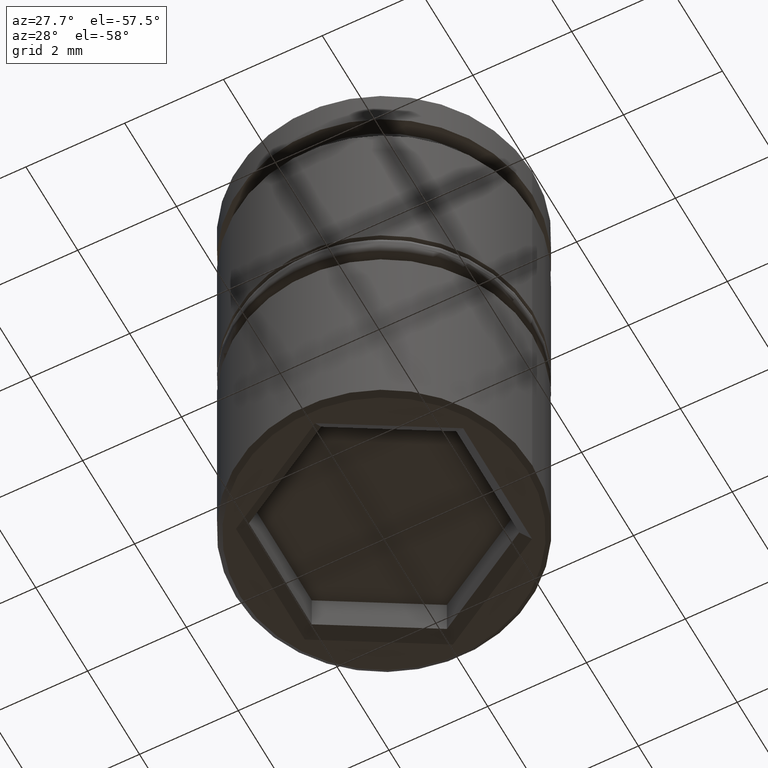
[diagram: clean part render]
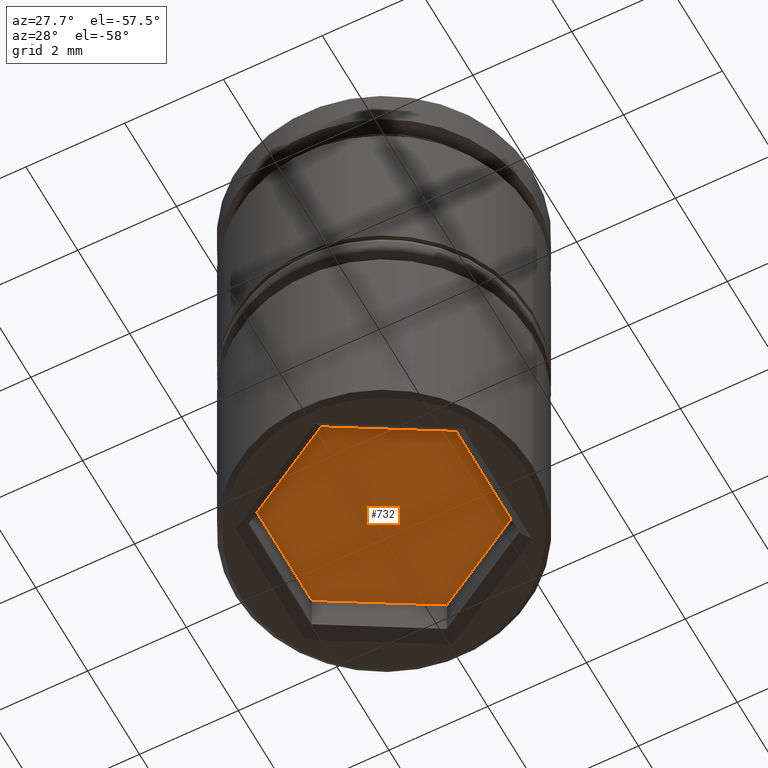
[diagram: same view with one face highlighted and labeled with its STEP entity id]
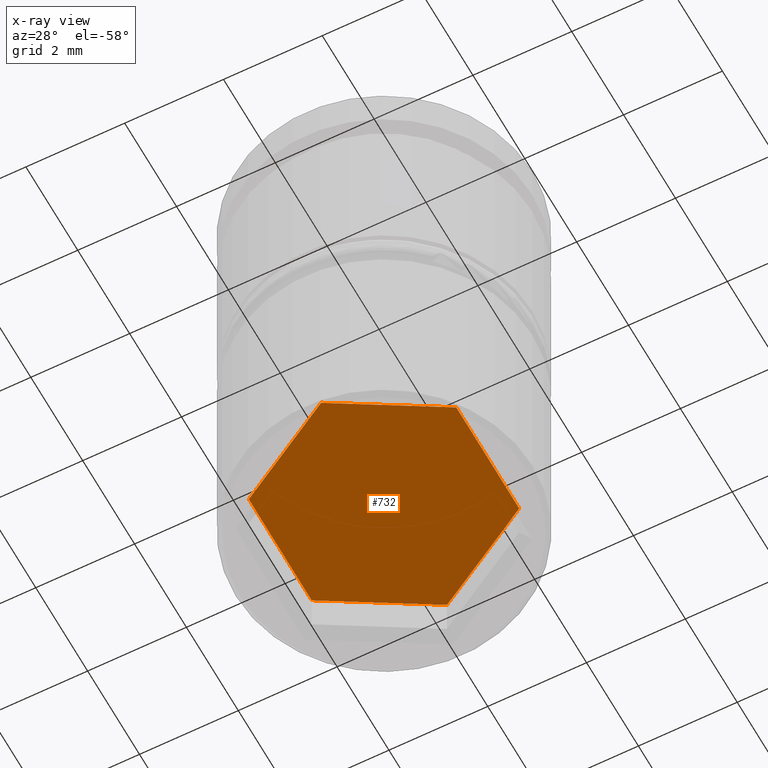
[diagram: x-ray of the same camera — body ghosted, the highlighted face saturated]
A machine part, auxiliary view. The second image highlights one B-rep face of the part: STEP entity #732.
The next image is the same camera in x-ray: the body ghosted, the highlighted face saturated — about 0% of this face is hidden behind the body in this view.
In plain terms, the highlighted planar face has unit normal (0, 0, -1).
Its self-contained STEP definition (entity closure, byte-faithful):
#17 = VERTEX_POINT ( 'NONE', #1038 ) ;
#23 = CARTESIAN_POINT ( 'NONE',  ( 0.000000000000000000, 2.424871130596428781, -9.000000000000001776 ) ) ;
#35 = LINE ( 'NONE', #23, #1125 ) ;
#43 = CARTESIAN_POINT ( 'NONE',  ( 2.100000000000000977, 1.212435565298214390, -9.000000000000001776 ) ) ;
#92 = CARTESIAN_POINT ( 'NONE',  ( 2.100000000000000977, -1.212435565298214835, -9.000000000000001776 ) ) ;
#125 = LINE ( 'NONE', #43, #947 ) ;
#157 = CARTESIAN_POINT ( 'NONE',  ( -2.100000000000000977, -1.212435565298214390, -9.000000000000001776 ) ) ;
#159 = VECTOR ( 'NONE', #790, 1000.000000000000000 ) ;
#173 = LINE ( 'NONE', #92, #705 ) ;
#194 = VECTOR ( 'NONE', #761, 1000.000000000000000 ) ;
#202 = EDGE_CURVE ( 'NONE', #939, #933, #1051, .T. ) ;
#265 = EDGE_CURVE ( 'NONE', #512, #939, #173, .T. ) ;
#280 = DIRECTION ( 'NONE',  ( -0.8660254037844388186, -0.4999999999999997780, 0.000000000000000000 ) ) ;
#316 = AXIS2_PLACEMENT_3D ( 'NONE', #471, #553, #390 ) ;
#321 = EDGE_CURVE ( 'NONE', #17, #740, #35, .T. ) ;
#368 = EDGE_CURVE ( 'NONE', #933, #505, #855, .T. ) ;
#390 = DIRECTION ( 'NONE',  ( -1.000000000000000000, 0.000000000000000000, -0.000000000000000000 ) ) ;
#391 = EDGE_CURVE ( 'NONE', #740, #512, #125, .T. ) ;
#403 = ORIENTED_EDGE ( 'NONE', *, *, #953, .T. ) ;
#471 = CARTESIAN_POINT ( 'NONE',  ( 0.000000000000000000, 0.000000000000000000, -9.000000000000001776 ) ) ;
#472 = CARTESIAN_POINT ( 'NONE',  ( -2.100000000000000977, 1.212435565298214835, -9.000000000000001776 ) ) ;
#488 = CARTESIAN_POINT ( 'NONE',  ( -2.100000000000000977, -1.212435565298214390, -9.000000000000001776 ) ) ;
#500 = ORIENTED_EDGE ( 'NONE', *, *, #368, .T. ) ;
#505 = VERTEX_POINT ( 'NONE', #648 ) ;
#512 = VERTEX_POINT ( 'NONE', #1103 ) ;
#553 = DIRECTION ( 'NONE',  ( 0.000000000000000000, 0.000000000000000000, -1.000000000000000000 ) ) ;
#567 = FACE_OUTER_BOUND ( 'NONE', #1171, .T. ) ;
#575 = LINE ( 'NONE', #472, #962 ) ;
#648 = CARTESIAN_POINT ( 'NONE',  ( -2.100000000000000977, 1.212435565298214835, -9.000000000000001776 ) ) ;
#651 = PLANE ( 'NONE',  #316 ) ;
#694 = ORIENTED_EDGE ( 'NONE', *, *, #202, .T. ) ;
#705 = VECTOR ( 'NONE', #280, 1000.000000000000114 ) ;
#725 = ORIENTED_EDGE ( 'NONE', *, *, #321, .T. ) ;
#732 = ADVANCED_FACE ( 'NONE', ( #567 ), #651, .T. ) ;
#740 = VERTEX_POINT ( 'NONE', #898 ) ;
#761 = DIRECTION ( 'NONE',  ( 0.000000000000000000, 1.000000000000000000, 0.000000000000000000 ) ) ;
#764 = DIRECTION ( 'NONE',  ( 0.8660254037844387076, -0.4999999999999998890, 0.000000000000000000 ) ) ;
#790 = DIRECTION ( 'NONE',  ( -0.8660254037844387076, 0.4999999999999998890, 0.000000000000000000 ) ) ;
#845 = DIRECTION ( 'NONE',  ( 0.8660254037844388186, 0.4999999999999997780, 0.000000000000000000 ) ) ;
#855 = LINE ( 'NONE', #488, #194 ) ;
#898 = CARTESIAN_POINT ( 'NONE',  ( 2.100000000000000977, 1.212435565298214390, -9.000000000000001776 ) ) ;
#933 = VERTEX_POINT ( 'NONE', #157 ) ;
#939 = VERTEX_POINT ( 'NONE', #1048 ) ;
#947 = VECTOR ( 'NONE', #1131, 1000.000000000000000 ) ;
#953 = EDGE_CURVE ( 'NONE', #505, #17, #575, .T. ) ;
#961 = CARTESIAN_POINT ( 'NONE',  ( -2.141739787237476565E-16, -2.424871130596428781, -9.000000000000001776 ) ) ;
#962 = VECTOR ( 'NONE', #845, 1000.000000000000114 ) ;
#1038 = CARTESIAN_POINT ( 'NONE',  ( 0.000000000000000000, 2.424871130596428781, -9.000000000000001776 ) ) ;
#1048 = CARTESIAN_POINT ( 'NONE',  ( -2.141739787237476565E-16, -2.424871130596428781, -9.000000000000001776 ) ) ;
#1051 = LINE ( 'NONE', #961, #159 ) ;
#1055 = ORIENTED_EDGE ( 'NONE', *, *, #391, .T. ) ;
#1103 = CARTESIAN_POINT ( 'NONE',  ( 2.100000000000000977, -1.212435565298214835, -9.000000000000001776 ) ) ;
#1125 = VECTOR ( 'NONE', #764, 1000.000000000000000 ) ;
#1130 = ORIENTED_EDGE ( 'NONE', *, *, #265, .T. ) ;
#1131 = DIRECTION ( 'NONE',  ( 0.000000000000000000, -1.000000000000000000, 0.000000000000000000 ) ) ;
#1171 = EDGE_LOOP ( 'NONE', ( #403, #725, #1055, #1130, #694, #500 ) ) ;